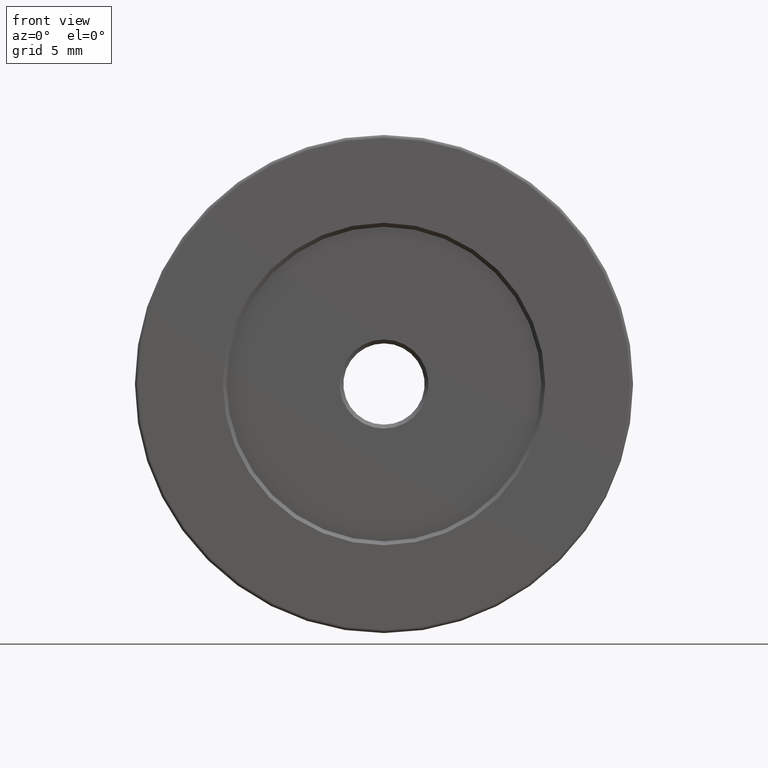
[diagram: clean part render]
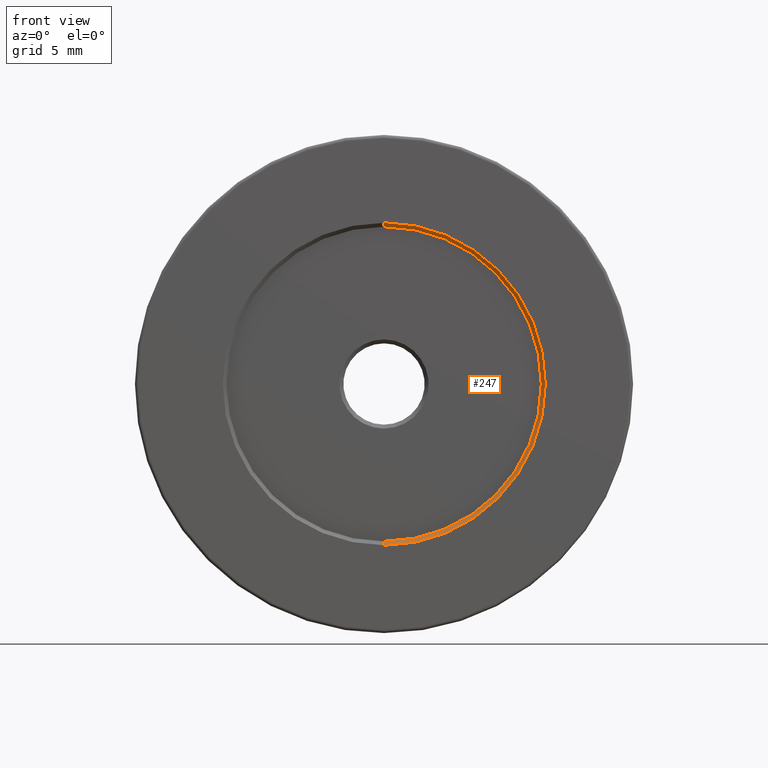
[diagram: same view with one face highlighted and labeled with its STEP entity id]
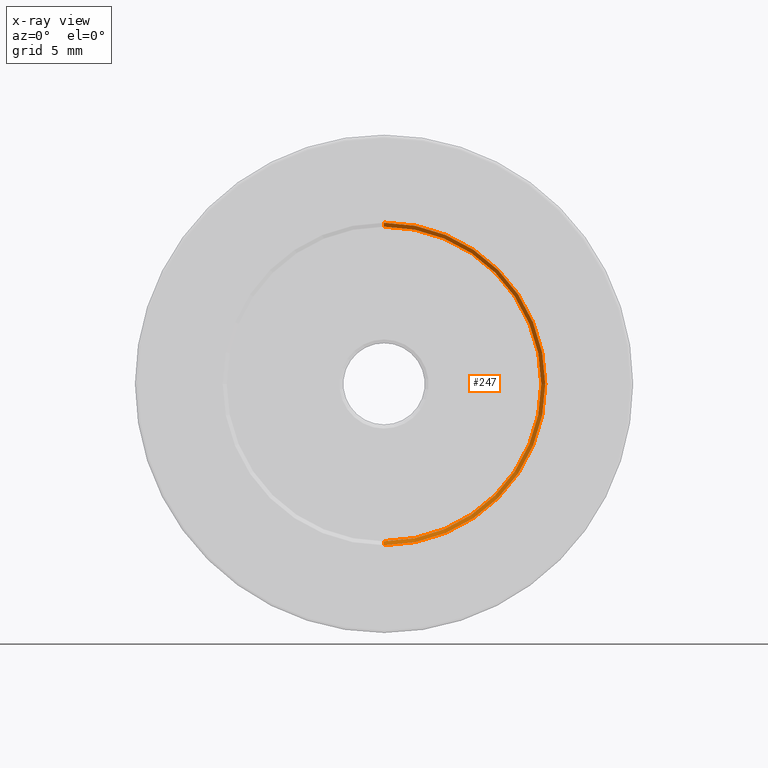
[diagram: x-ray of the same camera — body ghosted, the highlighted face saturated]
A machine part, front view. The second image highlights one B-rep face of the part: STEP entity #247.
The next image is the same camera in x-ray: the body ghosted, the highlighted face saturated — about 0% of this face is hidden behind the body in this view.
In plain terms, the highlighted conical surface has half-angle 45 deg.
Its self-contained STEP definition (entity closure, byte-faithful):
#12 = CARTESIAN_POINT ( 'NONE',  ( -7.546808913101046734, -10.39359512730272783, 50.29999999999999716 ) ) ;
#25 = CARTESIAN_POINT ( 'NONE',  ( -7.546808913101048510, -10.39359512730272783, 38.00000000000000000 ) ) ;
#34 = DIRECTION ( 'NONE',  ( -0.000000000000000000, -1.000000000000000000, -0.000000000000000000 ) ) ;
#38 = VECTOR ( 'NONE', #195, 1000.000000000000000 ) ;
#46 = CIRCLE ( 'NONE', #98, 12.00000000000000355 ) ;
#47 = ORIENTED_EDGE ( 'NONE', *, *, #115, .F. ) ;
#82 = FACE_OUTER_BOUND ( 'NONE', #550, .T. ) ;
#98 = AXIS2_PLACEMENT_3D ( 'NONE', #540, #494, #264 ) ;
#103 = LINE ( 'NONE', #12, #511 ) ;
#115 = EDGE_CURVE ( 'NONE', #361, #372, #103, .T. ) ;
#121 = CARTESIAN_POINT ( 'NONE',  ( -7.546808913101046734, -10.09359512730272712, 50.00000000000000000 ) ) ;
#125 = ORIENTED_EDGE ( 'NONE', *, *, #401, .T. ) ;
#166 = CARTESIAN_POINT ( 'NONE',  ( -7.546808913101048510, -10.09359512730272712, 25.99999999999999645 ) ) ;
#177 = DIRECTION ( 'NONE',  ( 0.000000000000000000, 1.000000000000000000, 0.000000000000000000 ) ) ;
#186 = CARTESIAN_POINT ( 'NONE',  ( -7.546808913101048510, -10.39359512730272783, 25.69999999999999929 ) ) ;
#187 = CONICAL_SURFACE ( 'NONE', #300, 12.29999999999999893, 0.7853981633974453924 ) ;
#195 = DIRECTION ( 'NONE',  ( 0.000000000000000000, -0.7071067811865495711, -0.7071067811865454633 ) ) ;
#211 = DIRECTION ( 'NONE',  ( 8.659560562354908206E-17, -0.7071067811865495711, 0.7071067811865454633 ) ) ;
#226 = DIRECTION ( 'NONE',  ( 0.000000000000000000, 0.000000000000000000, -1.000000000000000000 ) ) ;
#247 = ADVANCED_FACE ( 'NONE', ( #82 ), #187, .F. ) ;
#264 = DIRECTION ( 'NONE',  ( 0.000000000000000000, 0.000000000000000000, 1.000000000000000000 ) ) ;
#300 = AXIS2_PLACEMENT_3D ( 'NONE', #25, #34, #226 ) ;
#310 = AXIS2_PLACEMENT_3D ( 'NONE', #444, #177, #454 ) ;
#315 = EDGE_CURVE ( 'NONE', #372, #426, #590, .T. ) ;
#328 = CARTESIAN_POINT ( 'NONE',  ( -7.546808913101048510, -10.39359512730272783, 25.69999999999999929 ) ) ;
#348 = CARTESIAN_POINT ( 'NONE',  ( -7.546808913101046734, -10.39359512730272783, 50.29999999999999716 ) ) ;
#349 = VERTEX_POINT ( 'NONE', #166 ) ;
#361 = VERTEX_POINT ( 'NONE', #121 ) ;
#372 = VERTEX_POINT ( 'NONE', #348 ) ;
#401 = EDGE_CURVE ( 'NONE', #361, #349, #46, .T. ) ;
#426 = VERTEX_POINT ( 'NONE', #328 ) ;
#443 = EDGE_CURVE ( 'NONE', #349, #426, #470, .T. ) ;
#444 = CARTESIAN_POINT ( 'NONE',  ( -7.546808913101048510, -10.39359512730272783, 38.00000000000000000 ) ) ;
#449 = ORIENTED_EDGE ( 'NONE', *, *, #443, .T. ) ;
#454 = DIRECTION ( 'NONE',  ( 0.000000000000000000, 0.000000000000000000, 1.000000000000000000 ) ) ;
#470 = LINE ( 'NONE', #186, #38 ) ;
#494 = DIRECTION ( 'NONE',  ( -0.000000000000000000, 1.000000000000000000, -0.000000000000000000 ) ) ;
#505 = ORIENTED_EDGE ( 'NONE', *, *, #315, .F. ) ;
#511 = VECTOR ( 'NONE', #211, 1000.000000000000000 ) ;
#540 = CARTESIAN_POINT ( 'NONE',  ( -7.546808913101048510, -10.09359512730272712, 38.00000000000000000 ) ) ;
#550 = EDGE_LOOP ( 'NONE', ( #47, #125, #449, #505 ) ) ;
#590 = CIRCLE ( 'NONE', #310, 12.29999999999999893 ) ;